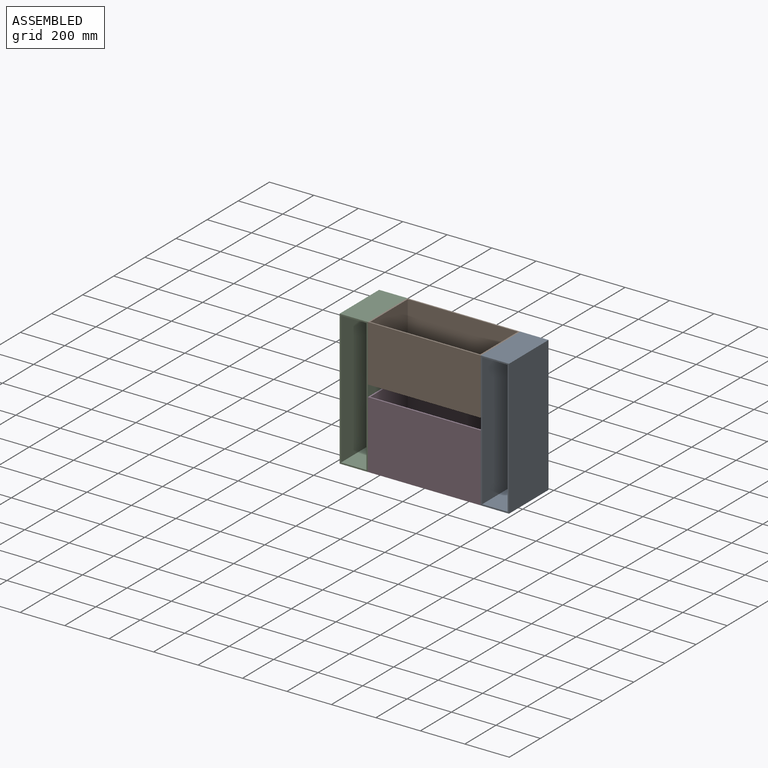
[diagram: assembled view]
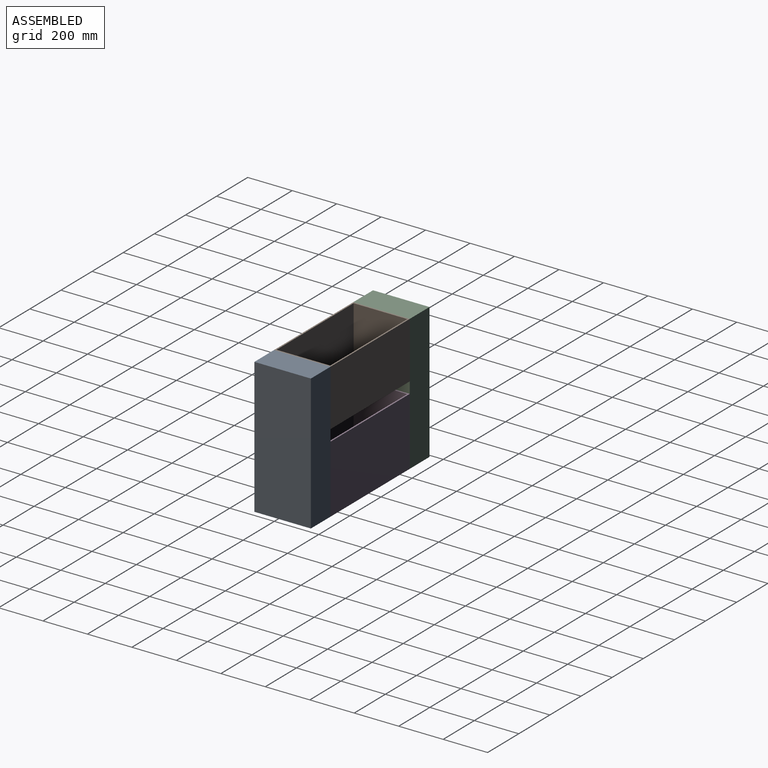
[diagram: assembled view, second angle]
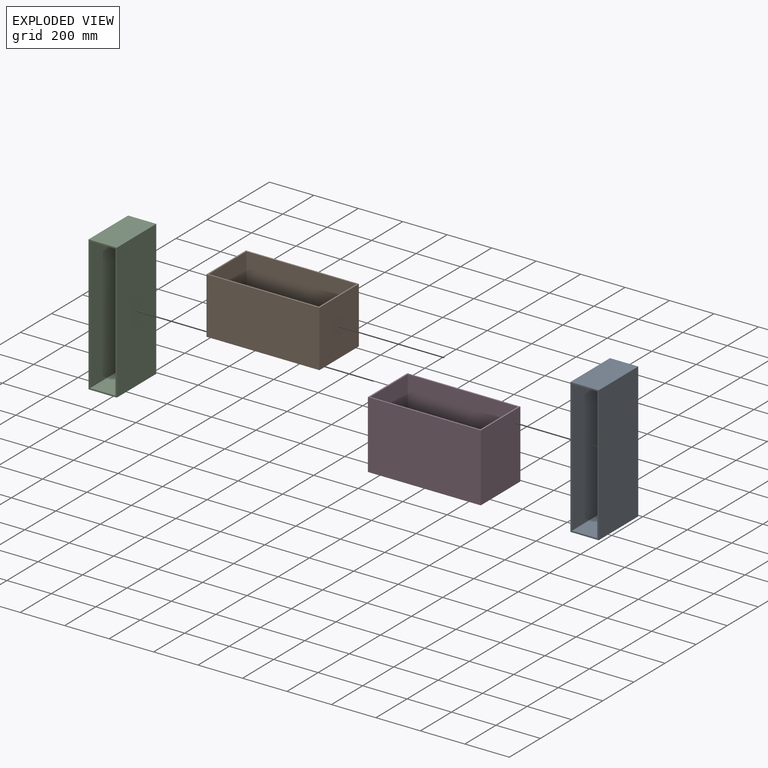
[diagram: exploded view]
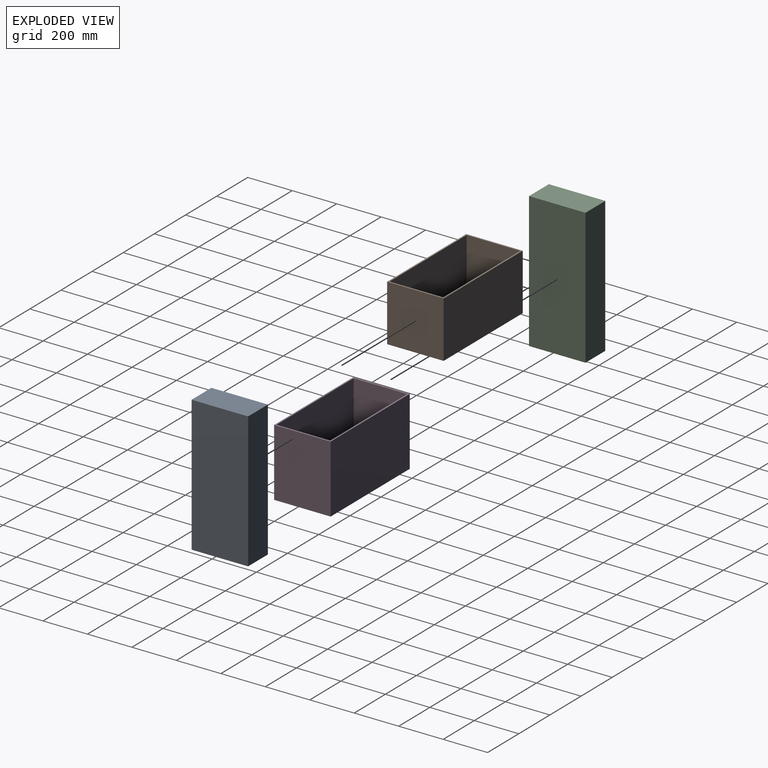
[diagram: exploded view, second angle]
ASSEMBLY  parts=4 mates=6
PART A: 11 faces, bbox 127x254x609.6 mm
  f0: plane 609.6x127mm, normal (0,-1,0), area 9193.5mm2, adj f1,f2,f3,f4,f6,f7,f8,f9
  f1: plane 609.6x254mm, normal (1,0,0), area 154838.4mm2, adj f0,f2,f4,f5
  f2: plane 254x127mm, normal (0,0,1), area 32258mm2, adj f0,f1,f3,f5
  f3: plane 609.6x254mm, normal (-1,0,0), area 154838.4mm2, adj f0,f2,f4,f5
  f4: plane 254x127mm, normal (0,0,-1), area 32258mm2, adj f0,f1,f3,f5
  f5: plane 609.6x127mm, normal (0,1,0), area 77419.2mm2, adj f1,f2,f3,f4
  f6: plane 596.9x247.65mm, normal (-1,0,0), area 147822.3mm2, adj f0,f7,f9,f10
  f7: plane 247.65x114.3mm, normal (0,0,-1), area 28306.4mm2, adj f0,f6,f8,f10
  f8: plane 596.9x247.65mm, normal (1,0,0), area 147822.3mm2, adj f0,f7,f9,f10
  f9: plane 247.65x114.3mm, normal (0,0,1), area 28306.4mm2, adj f0,f6,f8,f10
  f10: plane 596.9x114.3mm, normal (0,-1,0), area 68225.7mm2, adj f6,f7,f8,f9
PART B: 11 faces, bbox 508x254x254 mm
  f0: plane 508x254mm, normal (0,0,1), area 9516.1mm2, adj f1,f2,f3,f4,f6,f7,f8,f9
  f1: plane 508x254mm, normal (0,1,0), area 129032mm2, adj f0,f2,f4,f5
  f2: plane 254x254mm, normal (-1,0,0), area 64516mm2, adj f0,f1,f3,f5
  f3: plane 508x254mm, normal (0,-1,0), area 129032mm2, adj f0,f2,f4,f5
  f4: plane 254x254mm, normal (1,0,0), area 64516mm2, adj f0,f1,f3,f5
  f5: plane 508x254mm, normal (0,0,-1), area 129032mm2, adj f1,f2,f3,f4
  f6: plane 495.3x247.65mm, normal (0,-1,0), area 122661mm2, adj f0,f7,f9,f10
  f7: plane 247.65x241.3mm, normal (1,0,0), area 59757.9mm2, adj f0,f6,f8,f10
  f8: plane 495.3x247.65mm, normal (0,1,0), area 122661mm2, adj f0,f7,f9,f10
  f9: plane 247.65x241.3mm, normal (-1,0,0), area 59757.9mm2, adj f0,f6,f8,f10
  f10: plane 495.3x241.3mm, normal (0,0,1), area 119515.9mm2, adj f6,f7,f8,f9
PART C: same geometry as A
PART D: 11 faces, bbox 508x254x304.8 mm
  f0: plane 508x254mm, normal (0,0,1), area 9516.1mm2, adj f1,f2,f3,f4,f6,f7,f8,f9
  f1: plane 508x304.8mm, normal (0,1,0), area 154838.4mm2, adj f0,f2,f4,f5
  f2: plane 304.8x254mm, normal (-1,0,0), area 77419.2mm2, adj f0,f1,f3,f5
  f3: plane 508x304.8mm, normal (0,-1,0), area 154838.4mm2, adj f0,f2,f4,f5
  f4: plane 304.8x254mm, normal (1,0,0), area 77419.2mm2, adj f0,f1,f3,f5
  f5: plane 508x254mm, normal (0,0,-1), area 129032mm2, adj f1,f2,f3,f4
  f6: plane 495.3x298.45mm, normal (0,-1,0), area 147822.3mm2, adj f0,f7,f9,f10
  f7: plane 298.45x241.3mm, normal (1,0,0), area 72016mm2, adj f0,f6,f8,f10
  f8: plane 495.3x298.45mm, normal (0,1,0), area 147822.3mm2, adj f0,f7,f9,f10
  f9: plane 298.45x241.3mm, normal (-1,0,0), area 72016mm2, adj f0,f6,f8,f10
  f10: plane 495.3x241.3mm, normal (0,0,1), area 119515.9mm2, adj f6,f7,f8,f9
PLACE A t=(337.12,-88.82,66.96)mm
PLACE B t=(19.62,38.18,117.76)mm
PLACE C t=(-297.88,-88.82,66.96)mm
PLACE D t=(19.62,38.18,-237.84)mm
MATE planar A.f3 <-> B.f4  axis (-1,0,0) through (273.62,38.18,66.96)mm
MATE planar B.f2 <-> C.f1  axis (-1,0,0) through (-234.38,38.18,244.76)mm
MATE fastened A.f2 <-> B.f0  axis (0,0,1) through (273.62,-88.82,371.76)mm
MATE planar D.f2 <-> C.f1  axis (-1,0,0) through (-234.38,38.18,-85.44)mm
MATE fastened B.f3 <-> C.f0  axis (0,-1,0) through (-234.38,-88.82,371.76)mm
MATE fastened C.f4 <-> D.f5  axis (0,0,1) through (-234.38,-88.82,-237.84)mm
